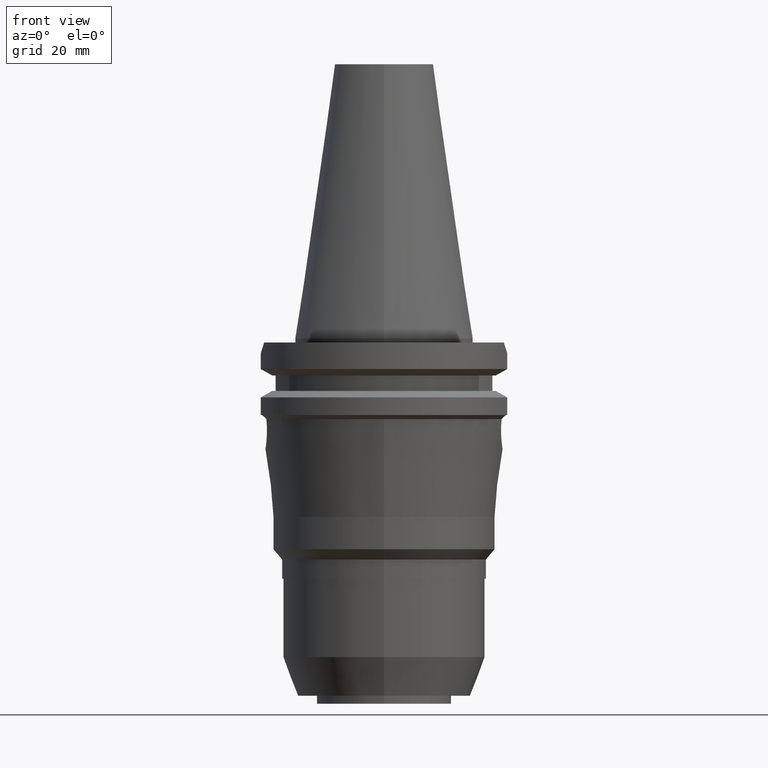
[diagram: clean part render]
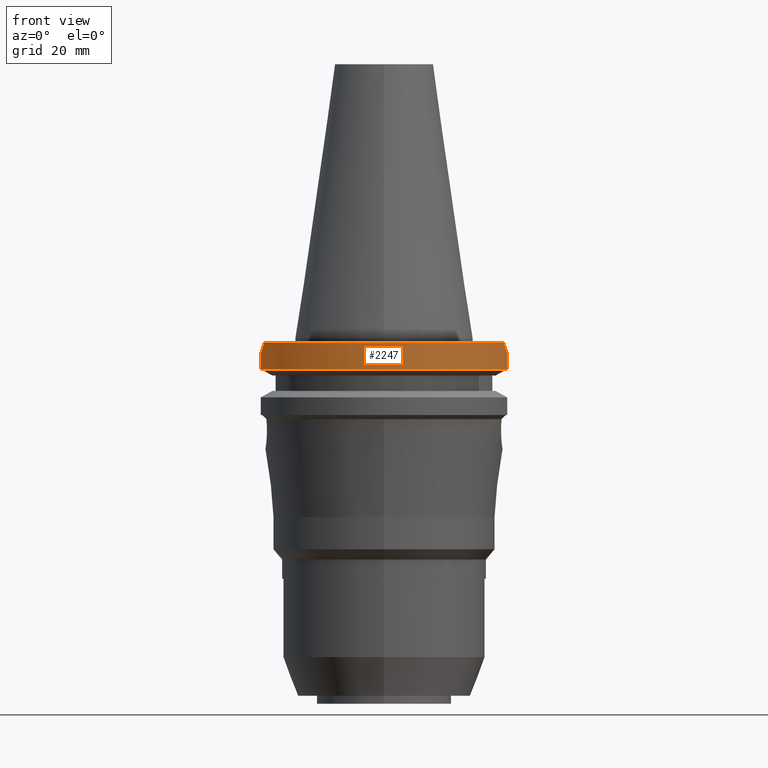
[diagram: same view with one face highlighted and labeled with its STEP entity id]
A machine part, front view. The second image highlights one B-rep face of the part: STEP entity #2247.
In plain terms, the highlighted cylindrical surface (partial cylindrical patch) has radius 31.75 mm, axis along (0, 0, -1).
Its self-contained STEP definition (entity closure, byte-faithful):
#108=CARTESIAN_POINT('',(0.E0,2.157919508608E-14,-1.E0));
#109=DIRECTION('',(0.E0,0.E0,-1.E0));
#110=DIRECTION('',(9.393382785306E-1,-3.429921259843E-1,0.E0));
#111=AXIS2_PLACEMENT_3D('',#108,#109,#110);
#116=CARTESIAN_POINT('',(0.E0,2.157919508608E-14,-1.E0));
#117=DIRECTION('',(0.E0,0.E0,-1.E0));
#118=DIRECTION('',(0.E0,-1.E0,0.E0));
#119=AXIS2_PLACEMENT_3D('',#116,#117,#118);
#741=CARTESIAN_POINT('',(2.982399034335E1,-1.089E1,-1.000000000001E0));
#742=CARTESIAN_POINT('',(3.015017741992E1,-9.996685011754E0,-1.893314988246E0));
#743=CARTESIAN_POINT('',(3.043345108244E1,-9.096596073173E0,-2.793403926827E0));
#744=CARTESIAN_POINT('',(3.067550162589E1,-8.19E0,-3.7E0));
#749=DIRECTION('',(-4.150120621153E-8,-1.554424710141E-7,-1.E0));
#750=VECTOR('',#749,3.901327811495E0);
#751=CARTESIAN_POINT('',(3.067550162589E1,-8.19E0,-3.7E0));
#752=LINE('',#751,#750);
#756=DIRECTION('',(8.605476801586E-9,-3.223121631473E-8,1.E0));
#757=VECTOR('',#756,3.901334354630E0);
#758=CARTESIAN_POINT('',(-3.067550165946E1,-8.189999874255E0,
-7.601334354630E0));
#759=LINE('',#758,#757);
#763=CARTESIAN_POINT('',(-3.067550162589E1,-8.19E0,-3.7E0));
#764=CARTESIAN_POINT('',(-3.043345108244E1,-9.096596073173E0,
-2.793403926827E0));
#765=CARTESIAN_POINT('',(-3.015017741992E1,-9.996685011754E0,
-1.893314988246E0));
#766=CARTESIAN_POINT('',(-2.982399034335E1,-1.089E1,-1.000000000001E0));
#790=CARTESIAN_POINT('',(3.067550146398E1,-8.190000606432E0,-7.601327811495E0));
#1055=CARTESIAN_POINT('',(0.E0,1.121722380079E-14,-7.601333230926E0));
#1056=DIRECTION('',(0.E0,0.E0,1.E0));
#1057=DIRECTION('',(-9.661575315241E-1,-2.579527559055E-1,0.E0));
#1058=AXIS2_PLACEMENT_3D('',#1055,#1056,#1057);
#1063=CARTESIAN_POINT('',(0.E0,1.121722380079E-14,-7.601333230926E0));
#1064=DIRECTION('',(0.E0,0.E0,1.E0));
#1065=DIRECTION('',(0.E0,-1.E0,0.E0));
#1066=AXIS2_PLACEMENT_3D('',#1063,#1064,#1065);
#1626=VERTEX_POINT('',#790);
#1627=CARTESIAN_POINT('',(3.067550162589E1,-8.19E0,-3.7E0));
#1628=VERTEX_POINT('',#1627);
#1645=CARTESIAN_POINT('',(-3.067550162589E1,-8.19E0,-3.7E0));
#1646=VERTEX_POINT('',#1645);
#1647=CARTESIAN_POINT('',(-3.067550165946E1,-8.189999874255E0,
-7.601334354630E0));
#1648=VERTEX_POINT('',#1647);
#1671=CARTESIAN_POINT('',(2.982399034335E1,-1.089E1,-1.E0));
#1672=VERTEX_POINT('',#1671);
#1673=CARTESIAN_POINT('',(0.E0,-3.175E1,-1.E0));
#1674=CARTESIAN_POINT('',(-2.982399034335E1,-1.089E1,-1.E0));
#1675=VERTEX_POINT('',#1673);
#1676=VERTEX_POINT('',#1674);
#1698=CARTESIAN_POINT('',(0.E0,-3.175E1,-7.601333230926E0));
#1699=VERTEX_POINT('',#1698);
#2227=CARTESIAN_POINT('',(0.E0,2.157919508608E-14,7.62075E1));
#2228=DIRECTION('',(0.E0,0.E0,-1.E0));
#2229=DIRECTION('',(0.E0,-1.E0,0.E0));
#2230=AXIS2_PLACEMENT_3D('',#2227,#2228,#2229);
#2231=CYLINDRICAL_SURFACE('',#2230,3.175E1);
#2233=ORIENTED_EDGE('',*,*,#2232,.T.);
#2235=ORIENTED_EDGE('',*,*,#2234,.T.);
#2237=ORIENTED_EDGE('',*,*,#2236,.F.);
#2239=ORIENTED_EDGE('',*,*,#2238,.F.);
#2241=ORIENTED_EDGE('',*,*,#2240,.T.);
#2242=ORIENTED_EDGE('',*,*,#2219,.T.);
#2243=ORIENTED_EDGE('',*,*,#1833,.F.);
#2244=ORIENTED_EDGE('',*,*,#1831,.F.);
#2245=EDGE_LOOP('',(#2233,#2235,#2237,#2239,#2241,#2242,#2243,#2244));
#2246=FACE_OUTER_BOUND('',#2245,.F.);
#112=CIRCLE('',#111,3.175E1);
#120=CIRCLE('',#119,3.175E1);
#745=B_SPLINE_CURVE_WITH_KNOTS('',3,(#741,#742,#743,#744),.UNSPECIFIED.,.F.,.F.,
(4,4),(0.E0,1.E0),.UNSPECIFIED.);
#767=B_SPLINE_CURVE_WITH_KNOTS('',3,(#763,#764,#765,#766),.UNSPECIFIED.,.F.,.F.,
(4,4),(0.E0,1.E0),.UNSPECIFIED.);
#1059=CIRCLE('',#1058,3.175E1);
#1067=CIRCLE('',#1066,3.175E1);
#1831=EDGE_CURVE('',#1672,#1675,#112,.T.);
#1833=EDGE_CURVE('',#1675,#1676,#120,.T.);
#2219=EDGE_CURVE('',#1646,#1676,#767,.T.);
#2232=EDGE_CURVE('',#1672,#1628,#745,.T.);
#2234=EDGE_CURVE('',#1628,#1626,#752,.T.);
#2236=EDGE_CURVE('',#1699,#1626,#1067,.T.);
#2238=EDGE_CURVE('',#1648,#1699,#1059,.T.);
#2240=EDGE_CURVE('',#1648,#1646,#759,.T.);
#2247=ADVANCED_FACE('',(#2246),#2231,.T.);